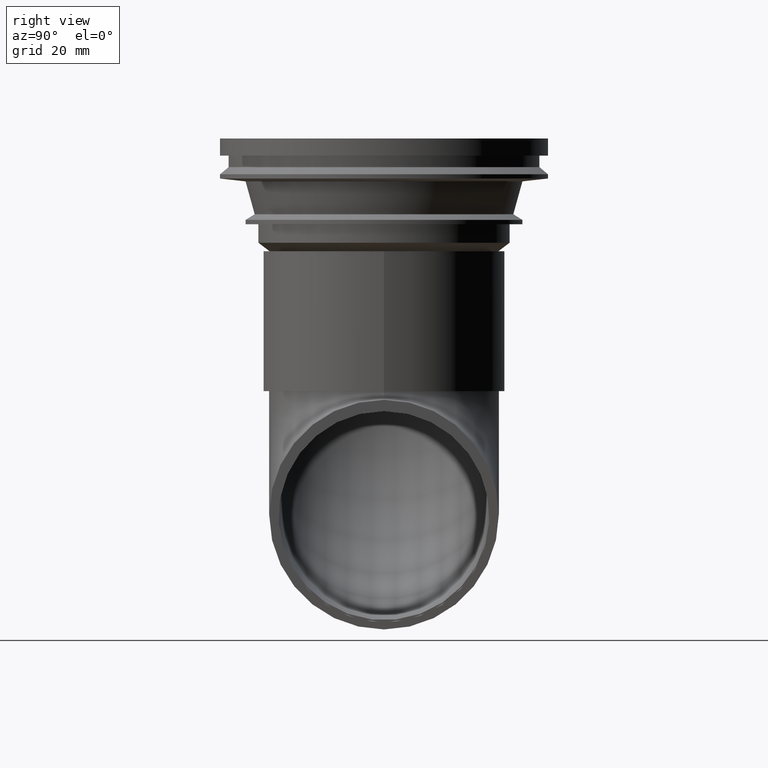
[diagram: clean part render]
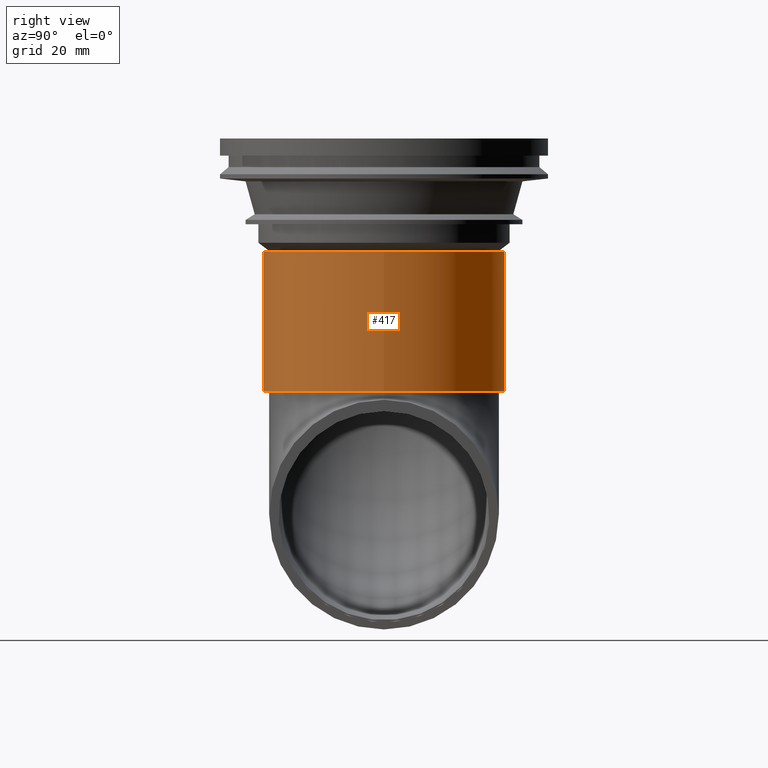
[diagram: same view with one face highlighted and labeled with its STEP entity id]
A machine part, right view. The second image highlights one B-rep face of the part: STEP entity #417.
In plain terms, the highlighted cylindrical surface (bore or boss wall) has radius 42.25 mm, axis along (0, 0, 1).
Its self-contained STEP definition (entity closure, byte-faithful):
#39=CYLINDRICAL_SURFACE('',#497,42.25);
#98=ORIENTED_EDGE('',*,*,#148,.T.);
#99=ORIENTED_EDGE('',*,*,#147,.F.);
#147=EDGE_CURVE('',#185,#185,#221,.T.);
#148=EDGE_CURVE('',#186,#186,#222,.T.);
#185=VERTEX_POINT('',#754);
#186=VERTEX_POINT('',#757);
#221=CIRCLE('',#496,42.25);
#222=CIRCLE('',#498,42.25);
#285=EDGE_LOOP('',(#98));
#286=EDGE_LOOP('',(#99));
#357=FACE_BOUND('',#285,.T.);
#358=FACE_BOUND('',#286,.T.);
#417=ADVANCED_FACE('',(#357,#358),#39,.T.);
#496=AXIS2_PLACEMENT_3D('',#753,#630,#631);
#497=AXIS2_PLACEMENT_3D('',#755,#632,#633);
#498=AXIS2_PLACEMENT_3D('',#756,#634,#635);
#630=DIRECTION('',(0.,0.,1.));
#631=DIRECTION('',(1.,0.,0.));
#632=DIRECTION('',(0.,0.,1.));
#633=DIRECTION('',(1.,0.,0.));
#634=DIRECTION('',(0.,0.,1.));
#635=DIRECTION('',(1.,0.,0.));
#753=CARTESIAN_POINT('',(0.,0.,-39.5));
#754=CARTESIAN_POINT('',(42.25,0.,-39.5));
#755=CARTESIAN_POINT('',(0.,0.,-39.5));
#756=CARTESIAN_POINT('',(0.,0.,-88.5));
#757=CARTESIAN_POINT('',(42.25,0.,-88.5));